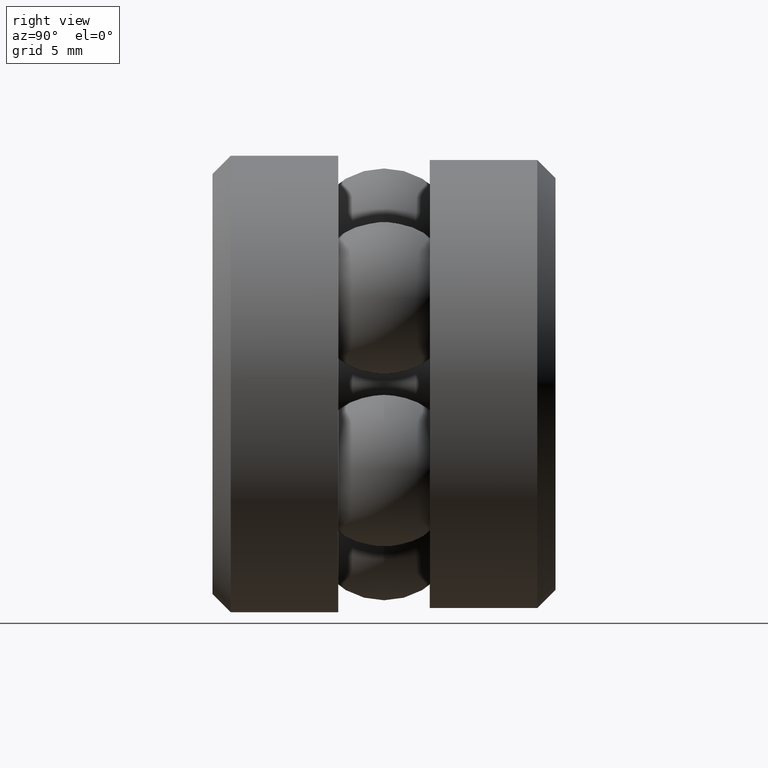
[diagram: clean part render]
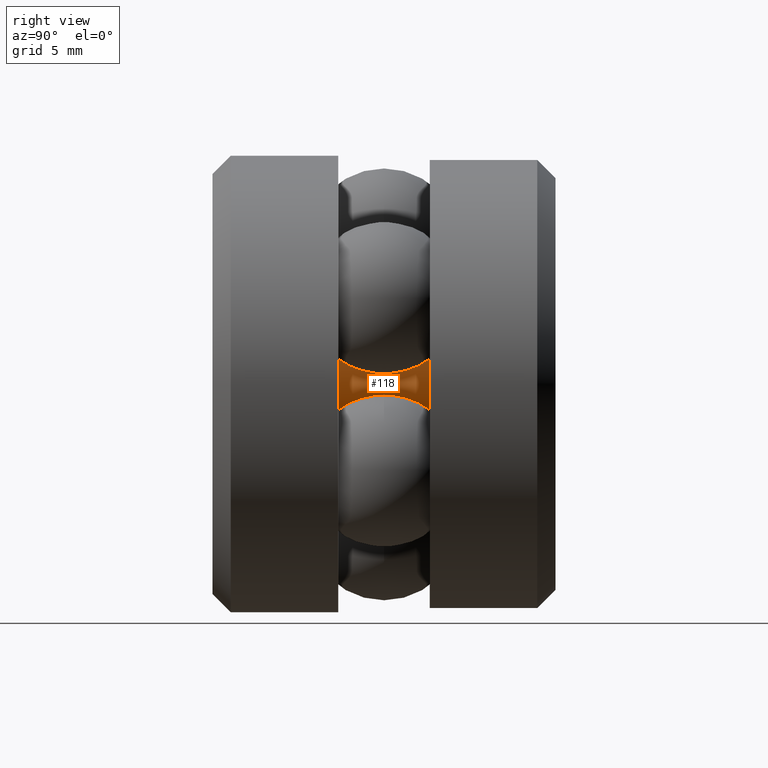
[diagram: same view with one face highlighted and labeled with its STEP entity id]
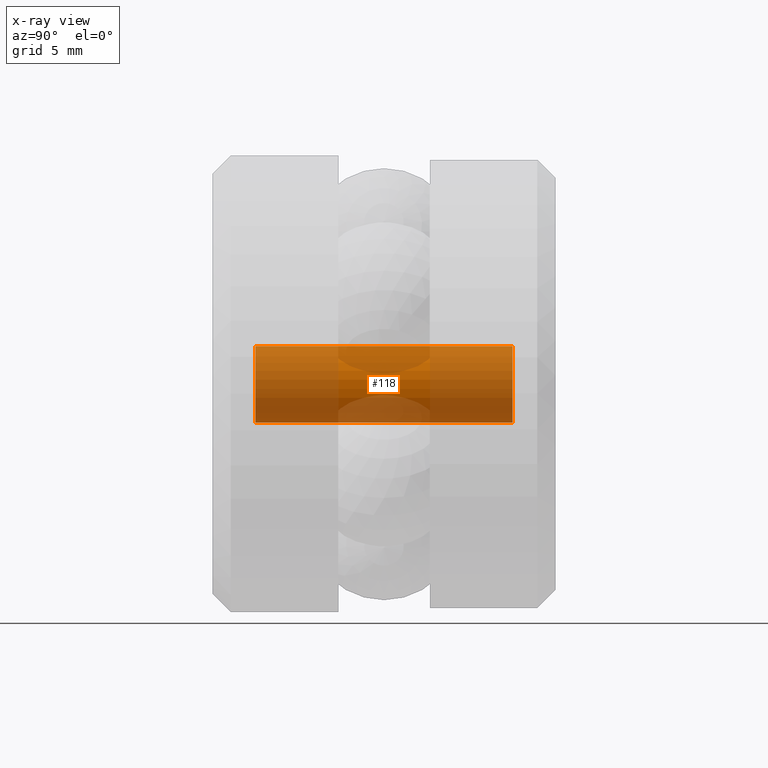
[diagram: x-ray of the same camera — body ghosted, the highlighted face saturated]
A machine part, right view. The second image highlights one B-rep face of the part: STEP entity #118.
The next image is the same camera in x-ray: the body ghosted, the highlighted face saturated — about 86% of this face is hidden behind the body in this view.
In plain terms, the highlighted cylindrical surface (bore or boss wall) has radius 1.5875 mm, axis along (-0, 1, -0).
Its self-contained STEP definition (entity closure, byte-faithful):
#11 = VERTEX_POINT ( 'NONE', #364 ) ;
#33 = DIRECTION ( 'NONE',  ( -0.0000000000000000000, 1.000000000000000000, -0.0000000000000000000 ) ) ;
#37 = DIRECTION ( 'NONE',  ( -0.0000000000000000000, 1.000000000000000000, -0.0000000000000000000 ) ) ;
#58 = DIRECTION ( 'NONE',  ( 0.0000000000000000000, 0.0000000000000000000, 1.000000000000000000 ) ) ;
#65 = AXIS2_PLACEMENT_3D ( 'NONE', #453, #37, #146 ) ;
#112 = FACE_OUTER_BOUND ( 'NONE', #450, .T. ) ;
#118 = ADVANCED_FACE ( 'NONE', ( #542, #112 ), #422, .T. ) ;
#127 = VERTEX_POINT ( 'NONE', #301 ) ;
#146 = DIRECTION ( 'NONE',  ( 0.0000000000000000000, 0.0000000000000000000, 1.000000000000000000 ) ) ;
#148 = CIRCLE ( 'NONE', #65, 0.06250000000000008300 ) ;
#180 = DIRECTION ( 'NONE',  ( -0.0000000000000000000, 1.000000000000000000, -0.0000000000000000000 ) ) ;
#194 = CARTESIAN_POINT ( 'NONE',  ( 0.0000000000000000000, 0.07031250000000006900, 0.0000000000000000000 ) ) ;
#235 = EDGE_CURVE ( 'NONE', #127, #127, #502, .T. ) ;
#266 = EDGE_CURVE ( 'NONE', #11, #11, #148, .T. ) ;
#301 = CARTESIAN_POINT ( 'NONE',  ( 0.0000000000000000000, 0.07031250000000006900, 0.06250000000000001400 ) ) ;
#320 = AXIS2_PLACEMENT_3D ( 'NONE', #194, #33, #510 ) ;
#364 = CARTESIAN_POINT ( 'NONE',  ( 0.0000000000000000000, 0.4921875000000000600, 0.06250000000000008300 ) ) ;
#405 = ORIENTED_EDGE ( 'NONE', *, *, #266, .F. ) ;
#422 = CYLINDRICAL_SURFACE ( 'NONE', #448, 0.06250000000000005600 ) ;
#448 = AXIS2_PLACEMENT_3D ( 'NONE', #486, #180, #58 ) ;
#450 = EDGE_LOOP ( 'NONE', ( #405 ) ) ;
#453 = CARTESIAN_POINT ( 'NONE',  ( 0.0000000000000000000, 0.4921875000000000600, 0.0000000000000000000 ) ) ;
#459 = ORIENTED_EDGE ( 'NONE', *, *, #235, .T. ) ;
#482 = EDGE_LOOP ( 'NONE', ( #459 ) ) ;
#486 = CARTESIAN_POINT ( 'NONE',  ( 0.0000000000000000000, 0.0000000000000000000, 0.0000000000000000000 ) ) ;
#502 = CIRCLE ( 'NONE', #320, 0.06250000000000001400 ) ;
#510 = DIRECTION ( 'NONE',  ( 0.0000000000000000000, 0.0000000000000000000, 1.000000000000000000 ) ) ;
#542 = FACE_OUTER_BOUND ( 'NONE', #482, .T. ) ;